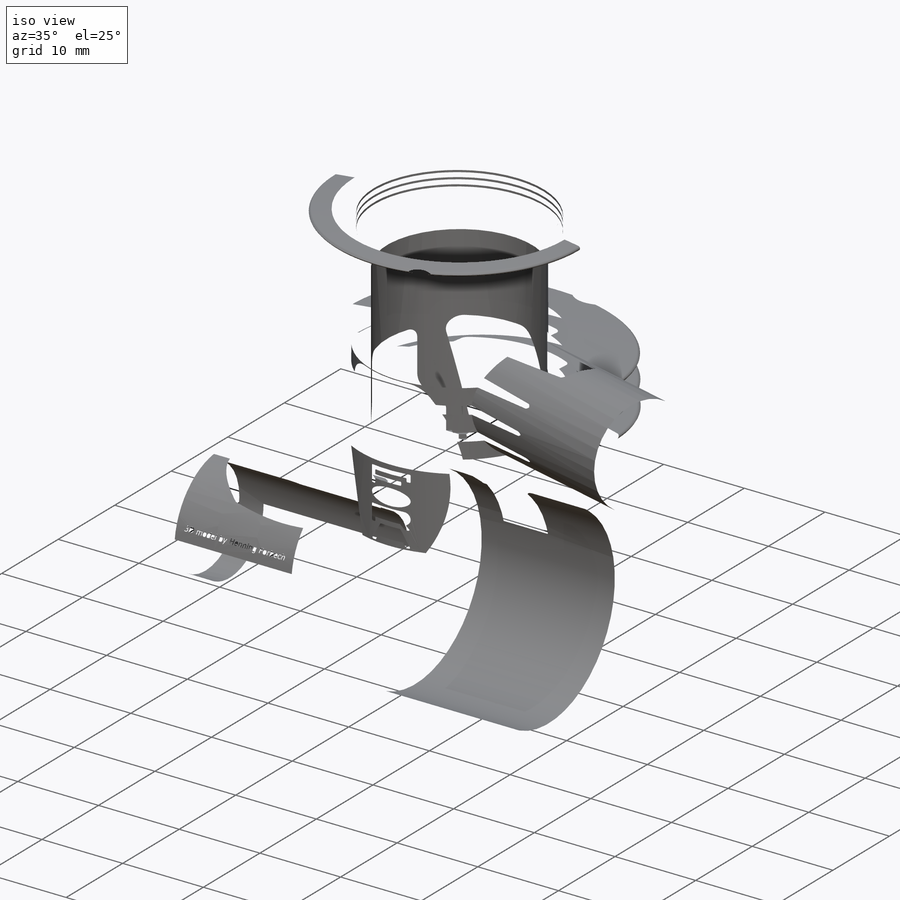
[diagram: iso view]
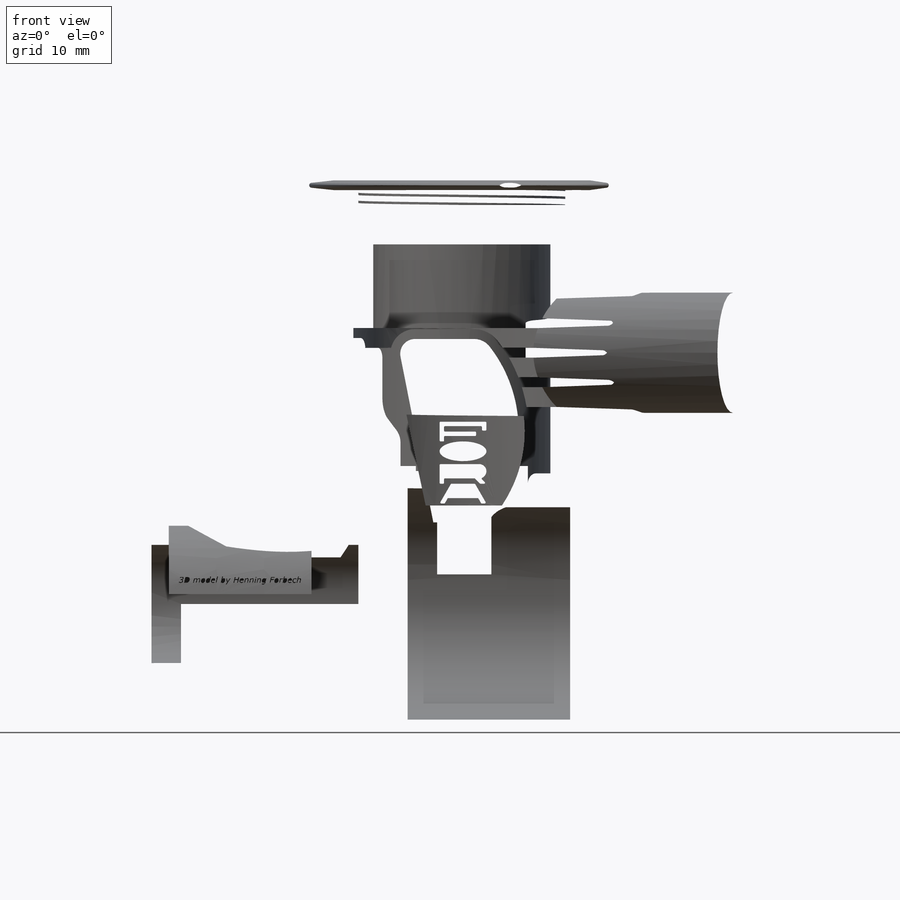
[diagram: front view]
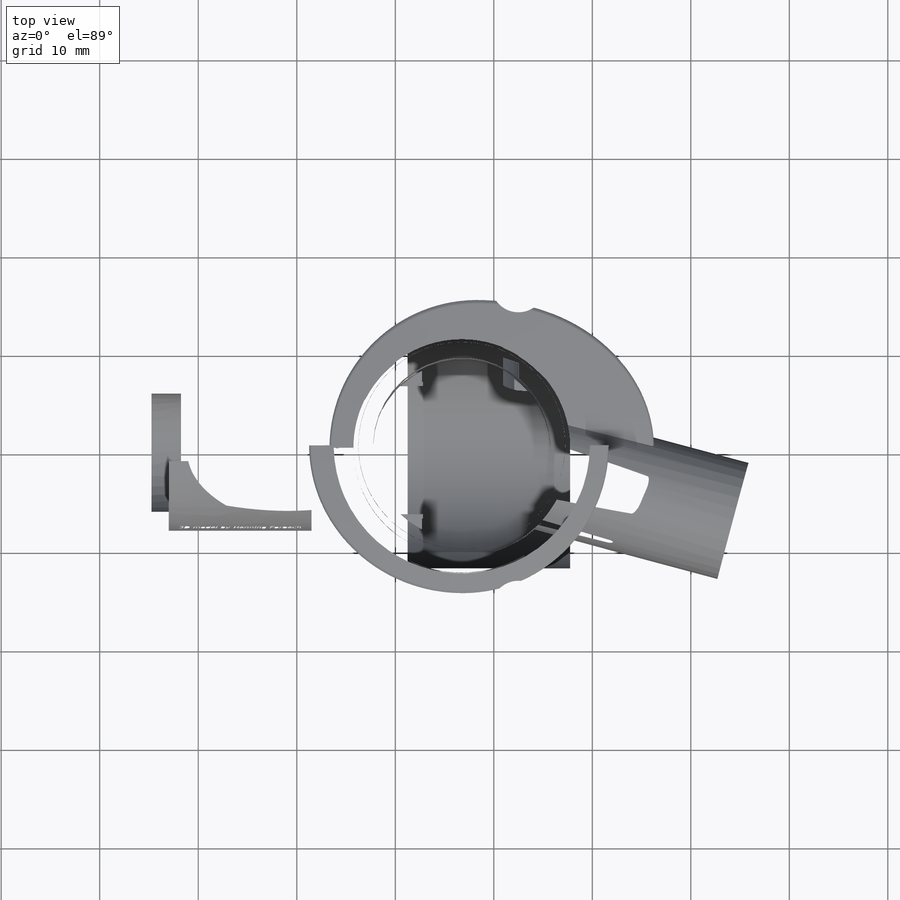
[diagram: top view]
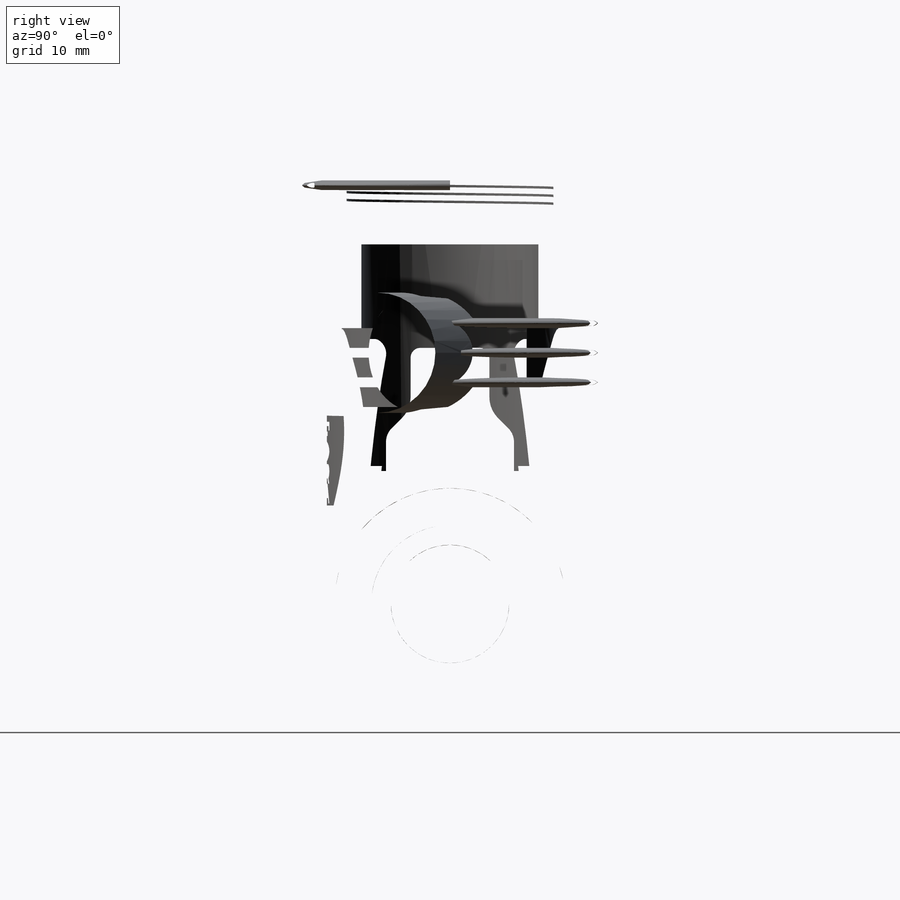
[diagram: right view]
SOLIDWORKS PART (.sldprt)
format: sldprt  version: not decoded by parser v0  size: 6,559,744 bytes
history: native  units: mm
features: sketch x97, plane x37, cut_extrude x17, extrude x16, fillet x12, revolve x5, chamfer x3, cut_revolve x2, mirror x2, material x1, helix x1, sweep x1 (+13 scaffold rows collapsed)
feature tree (207):
  scaffold x13  (default folders/planes/origin — collapsed)
  material  "2024 Alloy"
  sketch  "Sketch1"  dims[c1.D4=1.0mm c1.D9=2.0mm c1.D11=3.0mm c1.D12=5.0mm c2.D11=3.0mm c2.D26=5.0mm c2.D1=18.0mm c2.D2=1.6mm c2.D3=7.0mm c2.D5=2.0mm c2.D6=16.0mm c2.D7=20.0mm c2.D8=21.5mm c2.D10=27.0mm c2.D13=~1.145215mm c3.D13=15.0deg c3.D14=~41.617063mm c4.D14=5.0deg c4.D15=33.0mm c4.D16=47.75mm c4.D17=23.5mm c4.D18=16.5mm c4.D19=5.0mm c4.D20=21.0mm c4.D21=~7.96571mm c5.D21=55.0deg c5.D22=18.0mm c5.D23=5.0mm c5.D24=21.0mm c5.D25=14.0mm c6.D23=5.0mm c6.D21=7.0mm c6.D27=49.5mm c7.D27=~61.06892deg c7.D21=~14.834045mm c8.D21=60.0deg c8.D22=6.0mm c8.D27=12.0mm c8.D28=15.0mm c8.D29=5.25mm c8.D30=27.7mm c8.D15=26.0mm]
  revolve  "Revolve1"  Angle=360deg
  sketch  "Sketch2"  dims[c1.D3=3.2mm c1.D4=0.5mm c1.D5=3.5mm c1.D1=13.0mm c1.D2=33.0mm c1.D6=33.0mm c2.D6=15.0deg c2.D7=33.0mm c3.D7=8.0deg c3.D8=33.0mm c3.D9=29.5mm c3.D10=24.0mm c3.D11=~22.524501mm]
  extrude  "Extrude1"  Depth=4mm
  sketch  "Sketch3"  dims[D1=0.0mm D2=0.0mm]
  extrude  "Extrude2"  Depth=2.5mm
  sketch  "Sketch4"  dims[c1.D1=1.0mm c1.D6=0.4mm c1.D2=31.0mm c1.D3=~1.27221mm c2.D3=15.0deg c2.D4=2.5mm c2.D5=1.5mm c3.D3=2.0mm c4.D3=15.0deg c4.D4=2.5mm c4.D7=2.0mm]
  revolve  "Revolve2"  Angle=180deg
  sketch  "Sketch5"  dims[D1=27.0mm D2=3.0mm D3=42.0mm]
  cut_extrude  "Cut-Extrude1"  [1 undecoded]
  sketch  "Sketch6"  dims[c1.D4=25.0mm c1.D1=~28.44166mm c2.D1=5.0deg c2.D2=5.0mm c2.D3=22.0mm c2.D5=24.0mm]
  extrude  "Extrude3"  Depth=8.5mm
  fillet  "Fillet1"  Radius=2.5mm
  sketch  "Sketch7"  dims[D3=2.0mm D1=22.0mm D2=24.0mm]
  cut_extrude  "Cut-Extrude2"  Depth=6mm
  chamfer  "Chamfer1"  Distance=0.3mm Angle=45deg
  chamfer  "Chamfer2"  Distance=1mm Angle=30deg
  sketch  "Sketch8"  dims[D1=10.0mm]
  plane  "Plane1"
  sketch  "Sketch9"  dims[c1.D1=15.0mm c1.D2=12.0mm c1.D4=25.0mm c1.D3=11.0mm c1.D5=~37.948953mm c2.D3=38.0mm]
  extrude  "Extrude4"  [1 undecoded]
  sketch  "Sketch10"  dims[D1=7.0mm D2=4.0mm]
  extrude  "Extrude5"  Depth=12mm
  sketch  "Sketch13"  dims[c1.D10=1.5mm c1.D1=~6.636386mm c2.D1=~179.474865deg c3.D1=1.5mm c3.D2=14.0mm c3.D3=3.0mm c3.D4=4.5mm c3.D5=0.5mm c3.D6=5.0mm c3.D7=2.0mm c3.D8=19.0mm c3.D9=9.0mm]
  extrude  "Extrude6"  Depth=2mm
  sketch  "Sketch11"  dims[D1=4.0mm]
  cut_extrude  "Cut-Extrude3"  Depth=12mm
  sketch  "Sketch12"  dims[D1=7.0mm D2=9.0mm]
  cut_extrude  "Cut-Extrude4"  [1 undecoded]
  sketch  "Sketch14"  dims[D1=15.2mm D2=24.0mm D3=18.5mm D4=4.0mm D5=25.0mm]
  extrude  "Extrude7"  Depth=2mm
  sketch  "Sketch15"  dims[D1=4.0mm]
  extrude  "Extrude8"  Depth=3mm
  plane  "Plane2"  Offset=36.75mm
  sketch  "Sketch16"  dims[c1.D10=15.0mm c1.D15=5.0mm c1.D16=14.0mm c1.D1=18.0mm c1.D2=43.5mm c1.D3=25.0mm c1.D4=22.0mm c1.D5=21.0mm c1.D6=7.0mm c1.D7=4.0mm c1.D8=26.0mm c1.D9=10.0mm c1.D11=2.0mm c1.D12=~0.514261mm c2.D12=45.0deg c2.D13=22.5mm c2.D14=3.0mm c2.D17=14.0mm]
  revolve  "Revolve3"  Angle=360deg
  sketch  "Sketch18"  dims[c1.D1=2.5mm c1.D2=3.0mm c1.D5=15.0mm c1.D4=15.6mm c1.D6=32.5mm c1.D7=9.0mm c1.D8=32.0mm c1.D9=38.0mm c2.D4=15.6mm c2.D3=1.0mm]
  extrude  "Extrude9"  Depth=1.5mm
  sketch  "Sketch19"  dims[D1=29.5mm D2=8.0mm D3=0.5mm]
  fillet  "Fillet9"  Radius=1mm
  fillet  "Fillet10"  Radius=0.5mm
  sketch  "Sketch91"  dims[D1=6.0mm]
  cut_extrude  "Cut-Extrude18"  Depth=0.2mm
  sketch  "Sketch21"  dims[D1=2.0mm D2=15.0mm D3=15.5mm]
  extrude  "Extrude10"  Depth=3mm
  sketch  "Sketch23"
  extrude  "Extrude11"  Depth=1.5mm
  fillet  "Fillet2"  Radius=0.8mm
  sketch  "Sketch20"  dims[D1=1.0mm D2=12.0mm D3=13.25mm]
  cut_extrude  "Cut-Extrude5"  Depth=10mm
  sketch  "Sketch25"  dims[c1.D1=1.0mm c1.D2=2.0mm c1.D3=3.0mm c1.D4=10.0mm c1.D5=15.0mm c1.D6=6.0mm c1.D7=~3.40168mm c2.D7=45.0deg c2.D8=16.5mm]
  extrude  "Extrude12"  Depth=1.5mm
  fillet  "Fillet4"  Radius=1.5mm
  cut_revolve  "Cut-Revolve1"  Angle=360deg
  sketch  "Sketch26"
  cut_revolve  "Cut-Revolve2"  Angle=360deg
  sketch  "Sketch29"  dims[c1.D1=~6.397541mm c1.D2=2.0mm c2.D1=0.1mm c2.D3=1.5mm]
  cut_extrude  "Cut-Extrude11"  Depth=3mm
  fillet  "Fillet7"  Radius=1mm
  sketch  "Sketch33"  dims[D5=50.0mm D1=15.5mm D2=14.5mm D3=24.0mm D4=11.5mm D6=12.0mm D7=19.5mm D8=2.5mm D9=3.0mm D10=2.0mm D11=2.5mm D12=3.0mm D13=17.5mm D14=7.5mm]
  sketch  "Sketch34"  dims[c1.D1=0.5mm c1.D2=1.0mm c2.D1=0.1mm c2.D2=0.5mm c2.D3=1.0mm]
  plane  "Plane3"
  sketch  "Sketch35"  dims[D1=15.0mm D2=30.0mm]
  sketch  "Sketch37"  dims[D1=0.1mm]
  plane  "Plane4"
  sketch  "Sketch38"
  plane  "Plane5"
  sketch  "Sketch40"
  plane  "Plane6"
  sketch  "Sketch41"
  sketch  "Sketch42"  dims[D1=3.0mm]
  sketch  "Sketch43"
  plane  "Plane7"
  sketch  "Sketch44"
  plane  "Plane8"
  sketch  "Sketch45"
  plane  "Plane9"
  sketch  "Sketch46"
  sketch  "Sketch47"
  sketch  "Sketch48"
  plane  "Plane10"
  sketch  "Sketch49"
  plane  "Plane11"
  sketch  "Sketch50"
  plane  "Plane12"
  sketch  "Sketch51"
  sketch  "Sketch52"
  sketch  "Sketch53"
  plane  "Plane13"
  sketch  "Sketch54"
  plane  "Plane14"
  sketch  "Sketch55"
  plane  "Plane15"
  sketch  "Sketch56"
  sketch  "Sketch57"
  sketch  "Sketch58"
  plane  "Plane16"
  sketch  "Sketch59"
  plane  "Plane17"
  sketch  "Sketch60"
  plane  "Plane18"
  sketch  "Sketch61"
  sketch  "Sketch62"  dims[D1=0.1mm]
  sketch  "Sketch63"  dims[D1=0.1mm]
  plane  "Plane19"
  sketch  "Sketch64"
  plane  "Plane20"
  sketch  "Sketch65"
  plane  "Plane21"
  sketch  "Sketch66"
  sketch  "Sketch67"
  sketch  "Sketch68"
  plane  "Plane22"
  sketch  "Sketch69"
  plane  "Plane23"
  sketch  "Sketch70"
  plane  "Plane24"
  sketch  "Sketch71"
  sketch  "Sketch72"
  sketch  "Sketch73"
  plane  "Plane25"
  sketch  "Sketch74"
  plane  "Plane26"
  sketch  "Sketch75"
  plane  "Plane27"
  sketch  "Sketch76"
  sketch  "Sketch77"
  sketch  "Sketch78"
  plane  "Plane28"
  sketch  "Sketch79"
  plane  "Plane29"
  sketch  "Sketch80"
  plane  "Plane30"
  sketch  "Sketch81"
  sketch  "Sketch82"
  sketch  "Sketch83"
  plane  "Plane31"
  sketch  "Sketch84"
  plane  "Plane32"
  sketch  "Sketch85"
  plane  "Plane33"
  sketch  "Sketch86"
  sketch  "Sketch87"  dims[c1.D1=5.5mm c1.D2=36.75mm c2.D2=15.0deg]
  cut_extrude  "Cut-Extrude16"  Depth=25mm
  mirror  "Mirror1"
  sketch  "Sketch31"  dims[D1=1.5mm D2=3.2mm D3=11.0mm D4=17.5mm D5=6.0mm]
  revolve  "Revolve4"  Angle=360deg
  sketch  "Sketch32"
  cut_extrude  "Cut-Extrude13"  [1 undecoded]
  sketch  "Sketch24"
  cut_extrude  "Cut-Extrude15"  Depth=2mm
  fillet  "Fillet8"  Radius=1mm
  sketch  "Sketch27"  dims[c1.D2=1.0mm c1.D4=1.0mm c1.D1=1.0mm c2.D2=1.0mm c2.D3=12.5mm]
  cut_extrude  "Cut-Extrude9"  Depth=3mm
  fillet  "Fillet5"  Radius=2.5mm
  fillet  "Fillet6"  Radius=1mm
  sketch  "Sketch30"  dims[c1.D1=3.0mm c1.D3=2.0mm c2.D1=8.0mm c2.D2=3.0mm c2.D3=4.0mm]
  cut_extrude  "Cut-Extrude14"  Depth=2.5mm
  sketch  "Sketch88"
  cut_extrude  "Cut-Extrude17"  Depth=6.8mm
  plane  "Plane34"
  sketch  "Sketch89"  dims[c1.D1=29.0mm c1.D2=9.0mm c1.D3=12.2mm c1.D4=10.0mm c1.D5=18.0mm c1.D6=9.0mm c1.D7=9.0mm c2.D5=18.0mm]
  revolve  "Revolve5"  Angle=360deg
  sketch  "Sketch92"  dims[D1=22.6mm]
  helix  "Helix/Spiral1"  Pitch=3.2mm
  sketch  "Sketch93"  dims[c1.D3=0.1mm c1.D1=~3.840122mm c2.D1=35.0deg c2.D2=0.75mm]
  sweep  "Cut-Sweep1"
  sketch  "Sketch96"  dims[c1.D1=11.0mm c2.D1=45.0deg c2.D2=20.0mm]
  extrude  "Extrude13"  Depth=6mm
  plane  "Plane35"
  sketch  "Sketch94"  dims[c1.D1=12.5mm c1.D2=16.0mm c1.D3=7.0mm c1.D4=9.0mm c1.D5=9.0mm c2.D3=3.0mm c2.D6=9.5mm c2.D4=4.0mm]
  cut_extrude  "Cut-Extrude19"  Depth=7.5mm
  mirror  "VarFillet2"
  sketch  "Sketch98"  dims[D1=0.0mm]
  sketch  "Sketch99"  dims[D1=0.0mm]
  chamfer  "Chamfer3"  Distance=0.5mm
  plane  "Plane37"  Offset=17mm
  sketch  "Sketch100"  dims[c1.D1=8.0mm c1.D2=8.0mm c2.D2=38.0deg c2.D3=8.0mm c3.D3=37.0deg]
  cut_extrude  "Cut-Extrude20"  [1 undecoded]
  plane  "Plane38"
  sketch  "Sketch101"  dims[D1=8.0mm D2=2.0mm]
  extrude  "Extrude15"  Depth=0.05mm
  sketch  "Sketch102"  dims[c1.D1=4.75mm c1.D2=0.5mm c1.D3=2.2mm c1.D4=0.6mm c1.D5=0.2mm c1.D6=34.5mm c1.D7=18.5mm c1.D8=2.0mm c1.D9=1.2mm c2.D2=~3.565385mm c3.D2=~0.247229deg c4.D2=0.45mm c4.D3=2.0mm c4.D5=0.6mm c4.D4=0.6mm c5.D5=3.0mm c5.D9=1.3mm c5.D10=0.6mm c6.D10=135.0deg c6.D11=0.1mm c6.D12=~0.622695mm c7.D12=60.0deg]
  extrude  "Extrude16"  Depth=0.4mm
  sketch  "Sketch103"
  cut_extrude  "Cut-Extrude21"  [1 undecoded]
  fillet  "Fillet11"  Radius=0.1mm
  sketch  "Sketch104"  dims[c1.D1=~3.84326mm c2.D1=35.0deg c2.D2=4.0mm c2.D3=1.1mm c2.D4=0.3mm c2.D5=0.3mm c2.D6=0.3mm c2.D7=1.0mm c2.D8=3.0mm c2.D9=0.8mm c2.D10=1.0mm c2.D11=1.0mm c2.D12=~6.923324mm c3.D12=5.0deg c3.D13=~2.371103mm c4.D13=45.0deg c4.D14=0.7mm c4.D15=32.5mm]
  extrude  "Extrude17"  Depth=0.4mm
  sketch  "Sketch105"
  cut_extrude  "Cut-Extrude22"  [1 undecoded]
  fillet  "Fillet12"  Radius=0.1mm
  fillet  "Fillet13"  Radius=0.5mm
decode coverage: 94 of 156 modeling features carry decoded parameters
note: ~ marks probable driven/reference dimensions
note: 7 parameter values undecoded
summary: no parameter record found for 7 features
note: suppression state not decoded; provenance and decode notes live in map.json
